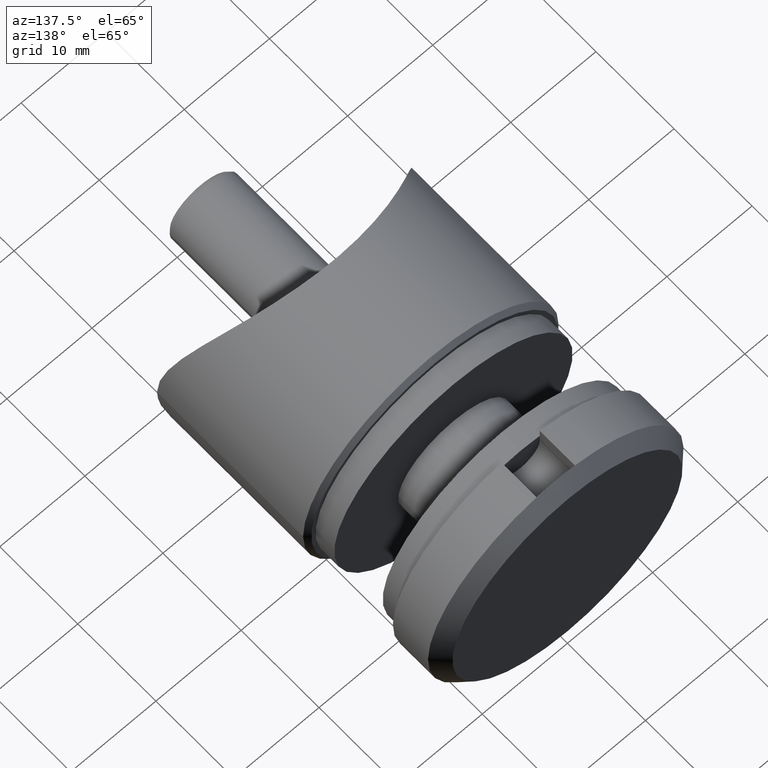
[diagram: clean part render]
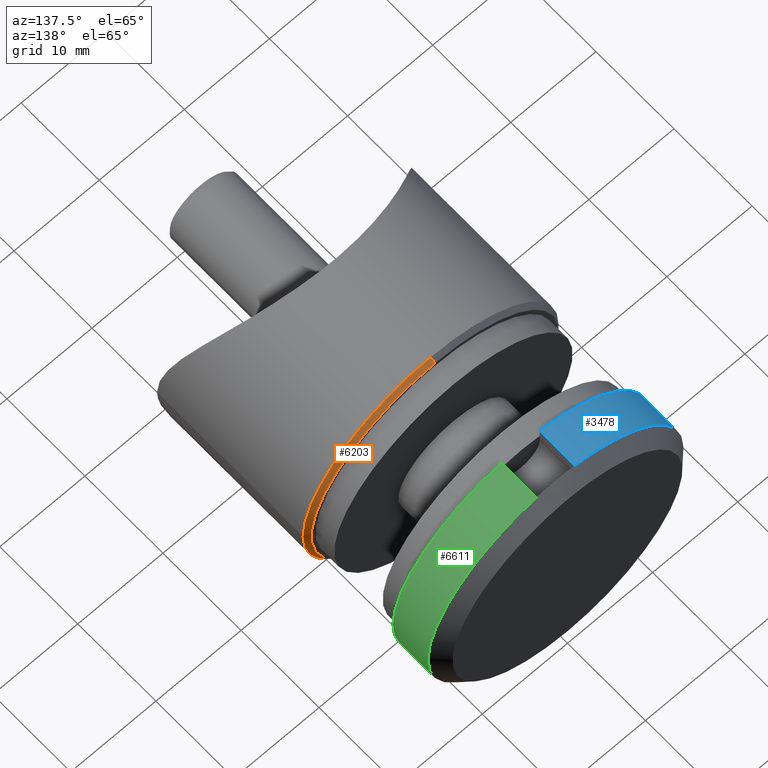
[diagram: same view with three faces highlighted in distinct colors, each labeled with its STEP entity id]
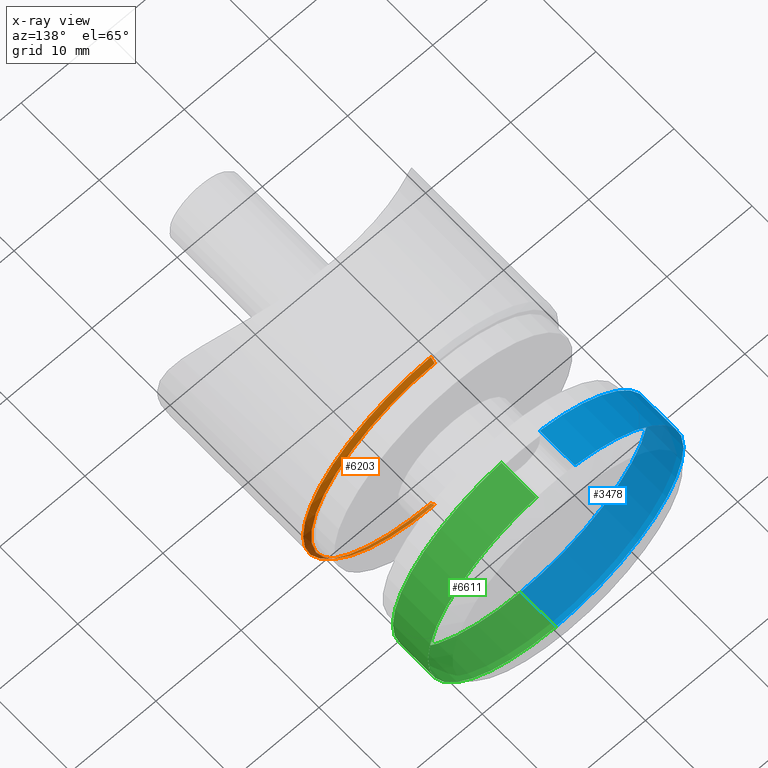
[diagram: x-ray of the same camera — body ghosted, the three highlighted faces saturated]
A machine part, auxiliary view with three faces highlighted in distinct colors.
The next image is the same camera in x-ray (body ghosted, the three faces saturated) — at least one of them is partly hidden behind the body in this view.
Their STEP definitions:

[orange] entity #6203 — the highlighted conical surface has half-angle 45 deg.
#162 = EDGE_CURVE ( 'NONE', #6451, #2892, #13072, .T. ) ;
#310 = CARTESIAN_POINT ( 'NONE',  ( -2.571758278209441267E-15, 12.50000000000000000, 0.000000000000000000 ) ) ;
#335 = CARTESIAN_POINT ( 'NONE',  ( 15.00000000000000000, 12.50000000000000000, 0.000000000000000000 ) ) ;
#402 = DIRECTION ( 'NONE',  ( 0.000000000000000000, 0.000000000000000000, 1.000000000000000000 ) ) ;
#1711 = DIRECTION ( 'NONE',  ( 0.000000000000000000, -0.7071067811865462405, -0.7071067811865489050 ) ) ;
#1749 = ORIENTED_EDGE ( 'NONE', *, *, #12181, .F. ) ;
#2325 = FACE_OUTER_BOUND ( 'NONE', #6591, .T. ) ;
#2351 = AXIS2_PLACEMENT_3D ( 'NONE', #2877, #7082, #12308 ) ;
#2520 = CIRCLE ( 'NONE', #10150, 14.50000000000000178 ) ;
#2877 = CARTESIAN_POINT ( 'NONE',  ( -2.571758278209441267E-15, 12.50000000000000000, 0.000000000000000000 ) ) ;
#2892 = VERTEX_POINT ( 'NONE', #335 ) ;
#2980 = EDGE_CURVE ( 'NONE', #2892, #12669, #4069, .T. ) ;
#3472 = EDGE_CURVE ( 'NONE', #4837, #7260, #2520, .T. ) ;
#3581 = ORIENTED_EDGE ( 'NONE', *, *, #13753, .T. ) ;
#4069 = CIRCLE ( 'NONE', #2351, 15.00000000000000178 ) ;
#4111 = CARTESIAN_POINT ( 'NONE',  ( -7.347880794884114806E-16, 12.50000000000000000, 15.00000000000000178 ) ) ;
#4358 = AXIS2_PLACEMENT_3D ( 'NONE', #310, #8895, #9932 ) ;
#4778 = LINE ( 'NONE', #5096, #8739 ) ;
#4837 = VERTEX_POINT ( 'NONE', #8033 ) ;
#5096 = CARTESIAN_POINT ( 'NONE',  ( -2.571758278209441267E-15, 12.50000000000000000, -15.00000000000000178 ) ) ;
#5339 = CARTESIAN_POINT ( 'NONE',  ( -7.347880794884114806E-16, 12.50000000000000000, 15.00000000000000178 ) ) ;
#5454 = ORIENTED_EDGE ( 'NONE', *, *, #2980, .F. ) ;
#6129 = ORIENTED_EDGE ( 'NONE', *, *, #3472, .F. ) ;
#6203 = ADVANCED_FACE ( 'NONE', ( #2325 ), #11010, .T. ) ;
#6451 = VERTEX_POINT ( 'NONE', #9787 ) ;
#6591 = EDGE_LOOP ( 'NONE', ( #6129, #3581, #5454, #10471, #1749 ) ) ;
#6755 = DIRECTION ( 'NONE',  ( -0.000000000000000000, -1.000000000000000000, -0.000000000000000000 ) ) ;
#7082 = DIRECTION ( 'NONE',  ( -0.000000000000000000, -1.000000000000000000, -0.000000000000000000 ) ) ;
#7260 = VERTEX_POINT ( 'NONE', #10777 ) ;
#7867 = CARTESIAN_POINT ( 'NONE',  ( -2.571758278209441267E-15, 12.50000000000000000, 0.000000000000000000 ) ) ;
#8033 = CARTESIAN_POINT ( 'NONE',  ( -7.654042494670951690E-16, 12.99999999999999822, 14.50000000000000178 ) ) ;
#8739 = VECTOR ( 'NONE', #1711, 999.9999999999998863 ) ;
#8759 = AXIS2_PLACEMENT_3D ( 'NONE', #7867, #6755, #402 ) ;
#8895 = DIRECTION ( 'NONE',  ( -0.000000000000000000, -1.000000000000000000, -0.000000000000000000 ) ) ;
#9787 = CARTESIAN_POINT ( 'NONE',  ( -2.571758278209441267E-15, 12.50000000000000000, -15.00000000000000178 ) ) ;
#9932 = DIRECTION ( 'NONE',  ( 0.000000000000000000, 0.000000000000000000, -1.000000000000000000 ) ) ;
#10106 = CARTESIAN_POINT ( 'NONE',  ( -2.571758278209441267E-15, 12.99999999999999822, 0.000000000000000000 ) ) ;
#10150 = AXIS2_PLACEMENT_3D ( 'NONE', #10106, #11972, #12303 ) ;
#10471 = ORIENTED_EDGE ( 'NONE', *, *, #162, .F. ) ;
#10777 = CARTESIAN_POINT ( 'NONE',  ( -2.571758278209441267E-15, 12.99999999999999822, -14.50000000000000178 ) ) ;
#11010 = CONICAL_SURFACE ( 'NONE', #4358, 15.00000000000000178, 0.7853981633974501664 ) ;
#11580 = LINE ( 'NONE', #4111, #12054 ) ;
#11972 = DIRECTION ( 'NONE',  ( 1.650797095189058802E-31, 1.000000000000000000, 0.000000000000000000 ) ) ;
#12054 = VECTOR ( 'NONE', #13750, 999.9999999999998863 ) ;
#12181 = EDGE_CURVE ( 'NONE', #7260, #6451, #4778, .T. ) ;
#12303 = DIRECTION ( 'NONE',  ( -1.000000000000000000, 0.000000000000000000, 0.000000000000000000 ) ) ;
#12308 = DIRECTION ( 'NONE',  ( -8.881784197001251337E-16, 0.000000000000000000, 1.000000000000000000 ) ) ;
#12669 = VERTEX_POINT ( 'NONE', #5339 ) ;
#13072 = CIRCLE ( 'NONE', #8759, 15.00000000000000178 ) ;
#13750 = DIRECTION ( 'NONE',  ( 8.659560562354950115E-17, -0.7071067811865462405, 0.7071067811865489050 ) ) ;
#13753 = EDGE_CURVE ( 'NONE', #4837, #12669, #11580, .T. ) ;

[blue] entity #3478 — the highlighted cylindrical surface (partial cylindrical patch) has radius 15 mm, axis along (-0, -1, -0).
#595 = ORIENTED_EDGE ( 'NONE', *, *, #6504, .T. ) ;
#1296 = DIRECTION ( 'NONE',  ( -0.000000000000000000, -1.000000000000000000, -0.000000000000000000 ) ) ;
#2367 = DIRECTION ( 'NONE',  ( 0.000000000000000000, 0.000000000000000000, -1.000000000000000000 ) ) ;
#2429 = DIRECTION ( 'NONE',  ( -0.000000000000000000, -1.000000000000000000, -0.000000000000000000 ) ) ;
#2490 = CIRCLE ( 'NONE', #12727, 15.00000000000000178 ) ;
#2741 = CARTESIAN_POINT ( 'NONE',  ( 0.000000000000000000, 0.000000000000000000, 0.000000000000000000 ) ) ;
#2882 = LINE ( 'NONE', #6733, #9565 ) ;
#2918 = VERTEX_POINT ( 'NONE', #9963 ) ;
#3202 = FACE_OUTER_BOUND ( 'NONE', #9318, .T. ) ;
#3314 = DIRECTION ( 'NONE',  ( -0.000000000000000000, -1.000000000000000000, -0.000000000000000000 ) ) ;
#3478 = ADVANCED_FACE ( 'NONE', ( #3202 ), #6037, .T. ) ;
#3656 = VERTEX_POINT ( 'NONE', #12433 ) ;
#3730 = DIRECTION ( 'NONE',  ( -0.000000000000000000, -1.000000000000000000, -0.000000000000000000 ) ) ;
#4204 = CARTESIAN_POINT ( 'NONE',  ( 0.000000000000000000, 5.000000000000000888, -15.00000000000000000 ) ) ;
#4318 = EDGE_CURVE ( 'NONE', #5810, #12227, #8553, .T. ) ;
#4521 = ORIENTED_EDGE ( 'NONE', *, *, #4318, .F. ) ;
#4661 = ORIENTED_EDGE ( 'NONE', *, *, #6457, .T. ) ;
#4663 = DIRECTION ( 'NONE',  ( -0.000000000000000000, -1.000000000000000000, -0.000000000000000000 ) ) ;
#5810 = VERTEX_POINT ( 'NONE', #7063 ) ;
#6037 = CYLINDRICAL_SURFACE ( 'NONE', #12550, 15.00000000000000000 ) ;
#6118 = EDGE_CURVE ( 'NONE', #2918, #5810, #10171, .T. ) ;
#6457 = EDGE_CURVE ( 'NONE', #2918, #3656, #2490, .T. ) ;
#6504 = EDGE_CURVE ( 'NONE', #3656, #12227, #2882, .T. ) ;
#6516 = DIRECTION ( 'NONE',  ( 0.000000000000000000, 0.000000000000000000, -1.000000000000000000 ) ) ;
#6733 = CARTESIAN_POINT ( 'NONE',  ( 0.000000000000000000, 0.000000000000000000, -15.00000000000000000 ) ) ;
#6985 = DIRECTION ( 'NONE',  ( 0.000000000000000000, 0.000000000000000000, -1.000000000000000000 ) ) ;
#7063 = CARTESIAN_POINT ( 'NONE',  ( -2.250000000000000888, 5.000000000000000888, 14.83028994996389116 ) ) ;
#7982 = AXIS2_PLACEMENT_3D ( 'NONE', #10971, #1296, #6516 ) ;
#8553 = CIRCLE ( 'NONE', #7982, 15.00000000000000000 ) ;
#8804 = CARTESIAN_POINT ( 'NONE',  ( -2.250000000000000888, 9.500000000000001776, 14.83028994996389116 ) ) ;
#9318 = EDGE_LOOP ( 'NONE', ( #4661, #595, #4521, #9480 ) ) ;
#9480 = ORIENTED_EDGE ( 'NONE', *, *, #6118, .F. ) ;
#9565 = VECTOR ( 'NONE', #4663, 1000.000000000000000 ) ;
#9963 = CARTESIAN_POINT ( 'NONE',  ( -2.250000000000000888, 9.500000000000001776, 14.83028994996389116 ) ) ;
#10171 = LINE ( 'NONE', #8804, #13340 ) ;
#10913 = CARTESIAN_POINT ( 'NONE',  ( 0.000000000000000000, 9.500000000000001776, 0.000000000000000000 ) ) ;
#10971 = CARTESIAN_POINT ( 'NONE',  ( 0.000000000000000000, 5.000000000000000888, 0.000000000000000000 ) ) ;
#12227 = VERTEX_POINT ( 'NONE', #4204 ) ;
#12433 = CARTESIAN_POINT ( 'NONE',  ( 0.000000000000000000, 9.500000000000001776, -15.00000000000000355 ) ) ;
#12550 = AXIS2_PLACEMENT_3D ( 'NONE', #2741, #3730, #6985 ) ;
#12727 = AXIS2_PLACEMENT_3D ( 'NONE', #10913, #3314, #2367 ) ;
#13340 = VECTOR ( 'NONE', #2429, 1000.000000000000000 ) ;

[green] entity #6611 — the highlighted cylindrical surface (partial cylindrical patch) has radius 15 mm, axis along (-0, -1, -0).
#637 = FACE_OUTER_BOUND ( 'NONE', #1722, .T. ) ;
#697 = CIRCLE ( 'NONE', #12893, 15.00000000000000000 ) ;
#727 = CARTESIAN_POINT ( 'NONE',  ( 2.250000000000005773, 5.000000000000000888, 14.83028994996389116 ) ) ;
#1722 = EDGE_LOOP ( 'NONE', ( #11635, #9449, #11668, #8650 ) ) ;
#2548 = DIRECTION ( 'NONE',  ( 0.000000000000000000, 0.000000000000000000, -1.000000000000000000 ) ) ;
#2644 = EDGE_CURVE ( 'NONE', #12227, #6766, #697, .T. ) ;
#2803 = DIRECTION ( 'NONE',  ( 0.000000000000000000, 0.000000000000000000, -1.000000000000000000 ) ) ;
#2882 = LINE ( 'NONE', #6733, #9565 ) ;
#3152 = CYLINDRICAL_SURFACE ( 'NONE', #13468, 15.00000000000000000 ) ;
#3656 = VERTEX_POINT ( 'NONE', #12433 ) ;
#4036 = EDGE_CURVE ( 'NONE', #11799, #6766, #8248, .T. ) ;
#4204 = CARTESIAN_POINT ( 'NONE',  ( 0.000000000000000000, 5.000000000000000888, -15.00000000000000000 ) ) ;
#4218 = DIRECTION ( 'NONE',  ( 0.000000000000000000, 0.000000000000000000, -1.000000000000000000 ) ) ;
#4663 = DIRECTION ( 'NONE',  ( -0.000000000000000000, -1.000000000000000000, -0.000000000000000000 ) ) ;
#5421 = VECTOR ( 'NONE', #12138, 1000.000000000000000 ) ;
#6504 = EDGE_CURVE ( 'NONE', #3656, #12227, #2882, .T. ) ;
#6611 = ADVANCED_FACE ( 'NONE', ( #637 ), #3152, .T. ) ;
#6733 = CARTESIAN_POINT ( 'NONE',  ( 0.000000000000000000, 0.000000000000000000, -15.00000000000000000 ) ) ;
#6766 = VERTEX_POINT ( 'NONE', #727 ) ;
#7097 = DIRECTION ( 'NONE',  ( -0.000000000000000000, -1.000000000000000000, -0.000000000000000000 ) ) ;
#7326 = CARTESIAN_POINT ( 'NONE',  ( 2.250000000000005773, 9.500000000000001776, 14.83028994996389294 ) ) ;
#7538 = CARTESIAN_POINT ( 'NONE',  ( 0.000000000000000000, 5.000000000000000888, 0.000000000000000000 ) ) ;
#8165 = CARTESIAN_POINT ( 'NONE',  ( 0.000000000000000000, 9.500000000000001776, 0.000000000000000000 ) ) ;
#8248 = LINE ( 'NONE', #13077, #5421 ) ;
#8650 = ORIENTED_EDGE ( 'NONE', *, *, #2644, .F. ) ;
#8821 = EDGE_CURVE ( 'NONE', #3656, #11799, #10597, .T. ) ;
#8934 = DIRECTION ( 'NONE',  ( -0.000000000000000000, -1.000000000000000000, -0.000000000000000000 ) ) ;
#9449 = ORIENTED_EDGE ( 'NONE', *, *, #8821, .T. ) ;
#9520 = DIRECTION ( 'NONE',  ( -0.000000000000000000, -1.000000000000000000, -0.000000000000000000 ) ) ;
#9565 = VECTOR ( 'NONE', #4663, 1000.000000000000000 ) ;
#10597 = CIRCLE ( 'NONE', #11966, 15.00000000000000178 ) ;
#11635 = ORIENTED_EDGE ( 'NONE', *, *, #6504, .F. ) ;
#11668 = ORIENTED_EDGE ( 'NONE', *, *, #4036, .T. ) ;
#11799 = VERTEX_POINT ( 'NONE', #7326 ) ;
#11966 = AXIS2_PLACEMENT_3D ( 'NONE', #8165, #7097, #2803 ) ;
#12113 = CARTESIAN_POINT ( 'NONE',  ( 0.000000000000000000, 0.000000000000000000, 0.000000000000000000 ) ) ;
#12138 = DIRECTION ( 'NONE',  ( -0.000000000000000000, -1.000000000000000000, -0.000000000000000000 ) ) ;
#12227 = VERTEX_POINT ( 'NONE', #4204 ) ;
#12433 = CARTESIAN_POINT ( 'NONE',  ( 0.000000000000000000, 9.500000000000001776, -15.00000000000000355 ) ) ;
#12893 = AXIS2_PLACEMENT_3D ( 'NONE', #7538, #9520, #4218 ) ;
#13077 = CARTESIAN_POINT ( 'NONE',  ( 2.250000000000005773, 9.500000000000001776, 14.83028994996389116 ) ) ;
#13468 = AXIS2_PLACEMENT_3D ( 'NONE', #12113, #8934, #2548 ) ;